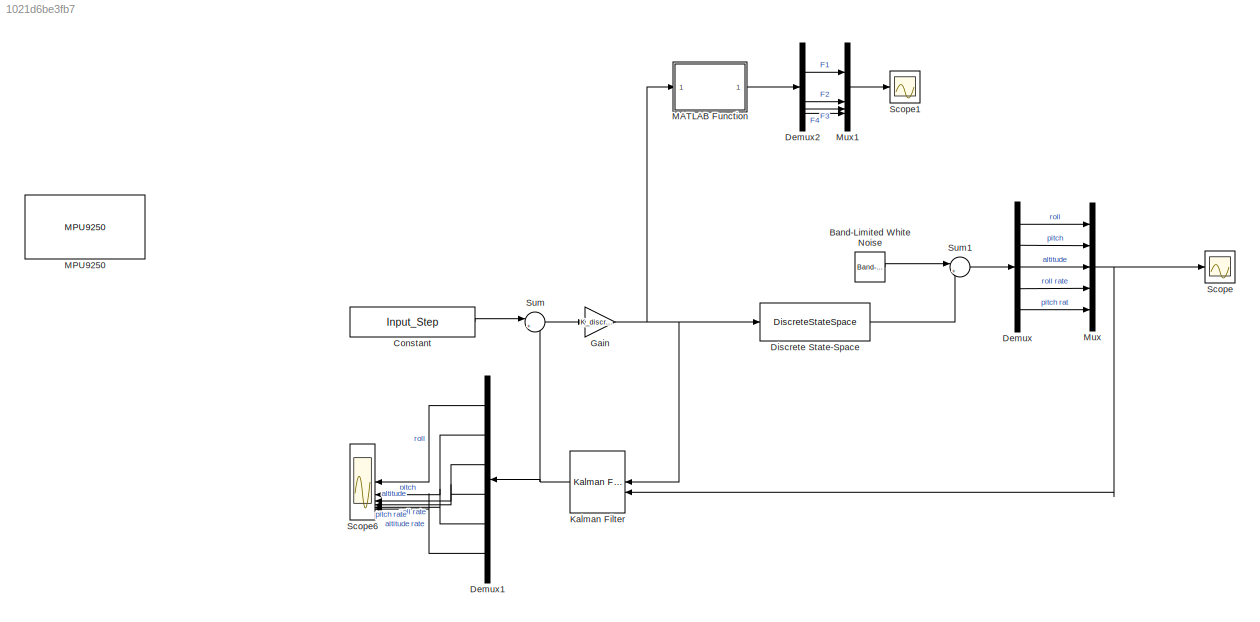
MODEL slx_1021d6be3fb7
KIND model
CONFIG AbsTol = auto
CONFIG EnableMultiTasking = off
CONFIG FixedStep = auto
CONFIG MaxStep = auto
CONFIG MinStep = auto
CONFIG RelTol = 1e-3
CONFIG SampleTimeConstraint = Unconstrained
CONFIG SolverName = VariableStepAuto
CONFIG StartTime = 0.0
CONFIG StopTime = 20
BLOCK [Reference] Band-Limited White Noise  REF=simulink/Sources/Band-Limited
White Noise
  SourceBlock = simulink/Sources/Band-Limited\nWhite Noise
  SourceType = Band-Limited White Noise.
BLOCK [Constant] Constant
  Value = Input_Step
BLOCK [Demux] Demux
  Outputs = 5
BLOCK [Demux] Demux1
  Outputs = 6
BLOCK [Demux] Demux2
BLOCK [DiscreteStateSpace] Discrete State-Space
  A = Ad
  B = Bd
  C = Cd
  D = Dd
  InitialCondition = [0;0;0;0;0;0]
  SampleTime = 0.02
BLOCK [Gain] Gain
  Gain = K_discrete
  Multiplication = Matrix(K*u)
BLOCK [Reference] Kalman Filter  REF=ctrlSharedLib/Kalman Filter
  LibrarySourceBlock = cstblocks/State Estimation/Kalman Filter
  SourceBlock = ctrlSharedLib/Kalman Filter
  SourceType = ctrlKalmanFilter
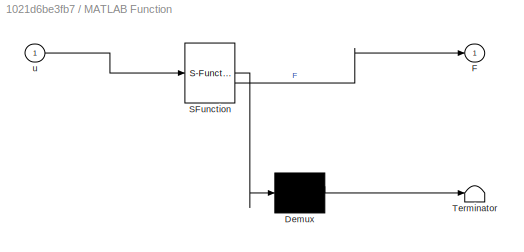
BLOCK [SubSystem] MATLAB Function
  ErrorFcn = Stateflow.Translate.translate
  PermitHierarchicalResolution = ExplicitOnly
  SFBlockType = MATLAB Function
  TreatAsAtomicUnit = on
BLOCK [Demux] MATLAB Function/ Demux 
  Outputs = 1
BLOCK [S-Function] MATLAB Function/ SFunction 
  EnableBusSupport = on
  FunctionName = sf_sfun
  PortCounts = [1 2]
  SFcnIsStateOwnerBlock = off
  SFunctionDeploymentMode = off
  Tag = Stateflow S-Function 2
BLOCK [Terminator] MATLAB Function/ Terminator 
BLOCK [Outport] MATLAB Function/F
BLOCK [Inport] MATLAB Function/u
BLOCK [Reference] MPU9250  REF=bbblueSensorLib/MPU9250
  Commented = on
  SourceBlock = bbblueSensorLib/MPU9250
  SourceType = beagleboneblue.bbblueMPU9250
BLOCK [Mux] Mux
  DisplayOption = bar
  Inputs = 5
BLOCK [Mux] Mux1
  DisplayOption = bar
BLOCK [Scope] Scope
  Floating = off
  NumInputPorts = 1
  ScopeSpecificationString = Simulink.scopes.TimeScopeBlockCfg('CurrentConfiguration', extmgr.ConfigurationSet(extmgr.Configuration('Core','General UI',true),extmgr.Configuration('Core','Source UI',true),extmgr.Configuration('Sources','WiredSimulink',true),extmgr.Configuration('Visuals','Time Domain',true,'SerializedDisplays',{struct('MinYLimReal','-0.38313','MaxYLimReal','0.84643','YLabelReal','','MinYLimMag','0.00000','MaxY...<+1628ch>
BLOCK [Scope] Scope1
  Floating = off
  NumInputPorts = 1
  ScopeSpecificationString = Simulink.scopes.TimeScopeBlockCfg('CurrentConfiguration', extmgr.ConfigurationSet(extmgr.Configuration('Core','General UI',true),extmgr.Configuration('Core','Source UI',true),extmgr.Configuration('Sources','WiredSimulink',true,'DataLoggingVariableName','ScopeData1'),extmgr.Configuration('Visuals','Time Domain',true,'SerializedDisplays',{struct('MinYLimReal','2.23572','MaxYLimReal','6.94357','YLabe...<+1617ch>
BLOCK [Scope] Scope6
  Floating = off
  NumInputPorts = 6
  ScopeSpecificationString = Simulink.scopes.TimeScopeBlockCfg('CurrentConfiguration', extmgr.ConfigurationSet(extmgr.Configuration('Core','General UI',true),extmgr.Configuration('Core','Source UI',true),extmgr.Configuration('Sources','WiredSimulink',true,'DataLoggingVariableName','ScopeData6'),extmgr.Configuration('Visuals','Time Domain',true,'SerializedDisplays',{struct('MinYLimReal','-0.06411','MaxYLimReal','0.56453','YLab...<+1731ch>
BLOCK [Sum] Sum
  Inputs = |+-
BLOCK [Sum] Sum1
  Inputs = |++
LINE Band-Limited White Noise:1 -> Sum1:1
LINE Constant:1 -> Sum:1
LINE Demux1:1 -> Scope6:1
LINE Demux1:2 -> Scope6:2
LINE Demux1:3 -> Scope6:3
LINE Demux1:4 -> Scope6:4
LINE Demux1:5 -> Scope6:5
LINE Demux1:6 -> Scope6:6
LINE Demux2:1 -> Mux1:1
LINE Demux2:2 -> Mux1:2
LINE Demux2:3 -> Mux1:3
LINE Demux2:4 -> Mux1:4
LINE Demux:1 -> Mux:1
LINE Demux:2 -> Mux:2
LINE Demux:3 -> Mux:3
LINE Demux:4 -> Mux:4
LINE Demux:5 -> Mux:5
LINE Discrete State-Space:1 -> Sum1:2
NET Gain:1 -> Discrete State-Space:1, Kalman Filter:1, MATLAB Function:1
NET Kalman Filter:1 -> Demux1:1, Sum:2
LINE MATLAB Function:1 -> Demux2:1
LINE Mux1:1 -> Scope1:1
NET Mux:1 -> Kalman Filter:2, Scope:1
LINE Sum1:1 -> Demux:1
LINE Sum:1 -> Gain:1
note: NET lines group one-source signal fan-out (src -> all destinations, sorted); 1:1 wires keep LINE
CHART MATLAB Function states=1 transitions=1
  STATE_LABEL 'eML_blk_kernel()'
  STATE_LABEL 'SCRIPT:\nfunction F = fcn(u)\n\nL=0.175;\nc=0.015;\nm=1.271;\ng=9.81;\nT = [1 1 1 1;\n    -L L -L L;\n    -L -L L L;\n    c -c -c c;];\nM = [-m*g;0;0;0];\n\n\nF = T\\(u-M); % Getting the Force Vector [F1;F2;F3;F4]\n\n\nPWM = zeros(4,1);\nfor i=1:4\n    PWM(i)=((1000*F(i))/((256.81)*g))-((60.476)/256.81);\n    PWM(i) = round(PWM(i)*10)/10;\n    PWM(i) = 60 + PWM(i)*10;\nend\n\ndisp(PWM)\ndisp("------")\n\nend\n'
CHART  states=0 transitions=0
